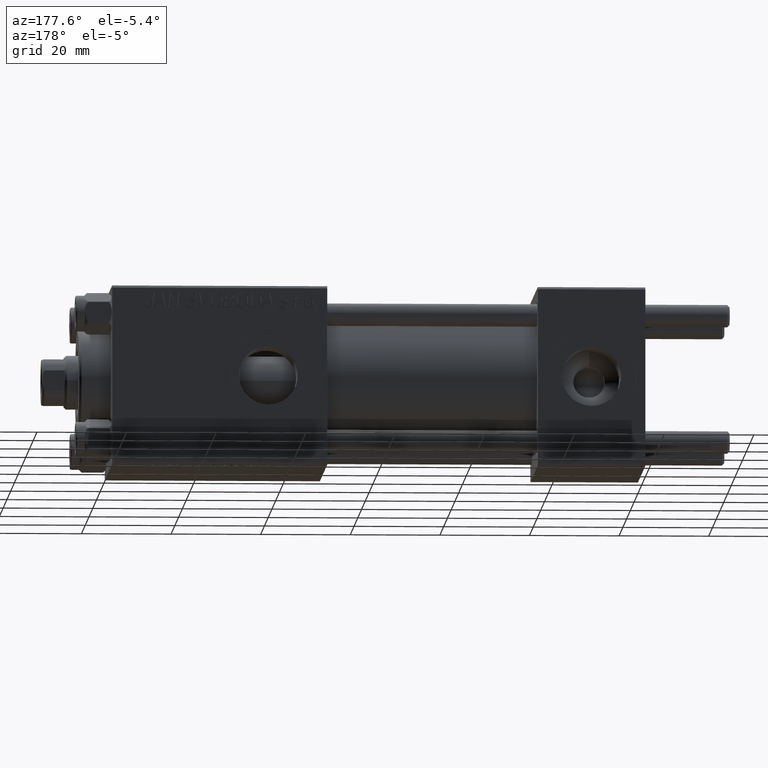
[diagram: clean part render]
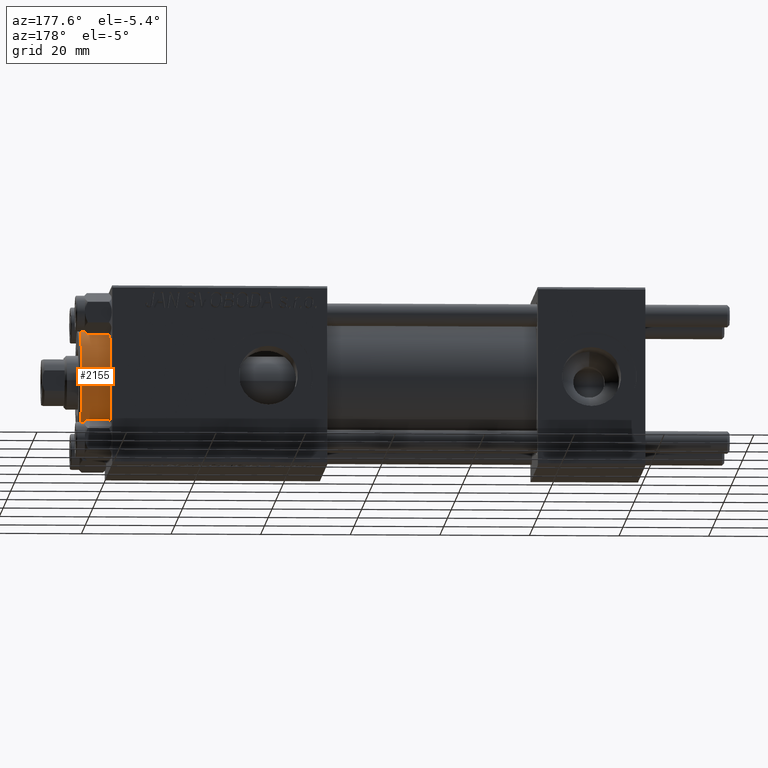
[diagram: same view with one face highlighted and labeled with its STEP entity id]
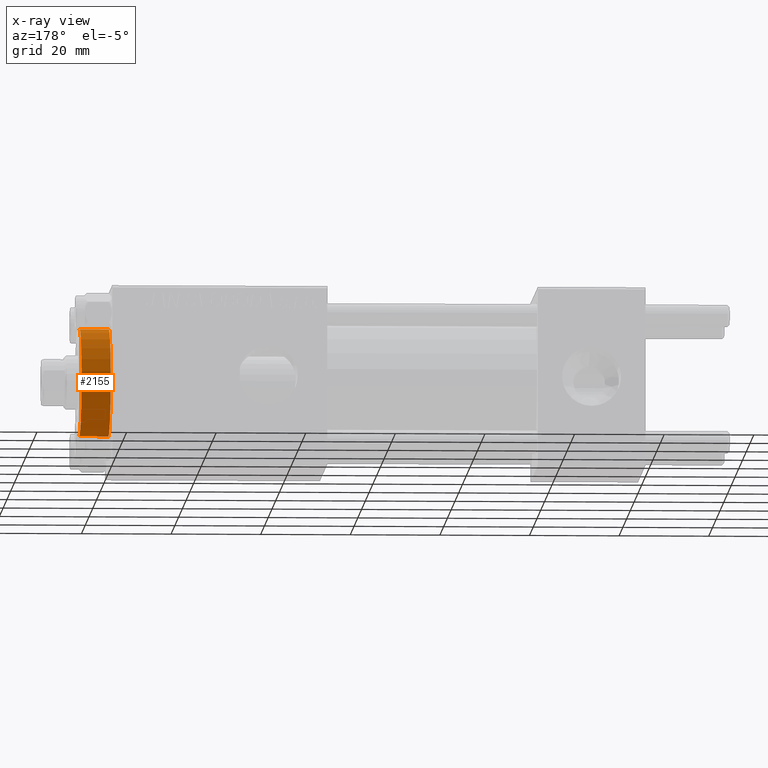
[diagram: x-ray of the same camera — body ghosted, the highlighted face saturated]
A machine part, auxiliary view. The second image highlights one B-rep face of the part: STEP entity #2155.
The next image is the same camera in x-ray: the body ghosted, the highlighted face saturated — about 0% of this face is hidden behind the body in this view.
In plain terms, the highlighted cylindrical surface (partial cylindrical patch) has radius 12 mm, axis along (-1, -0, 0).
Its self-contained STEP definition (entity closure, byte-faithful):
#279 = DIRECTION ( 'NONE',  ( 1.000000000000000000, 0.000000000000000000, 0.000000000000000000 ) ) ;
#1573 = LINE ( 'NONE', #9861, #38157 ) ;
#2108 = CARTESIAN_POINT ( 'NONE',  ( -12.00000000000000178, 0.000000000000000000, 28.69999999999999929 ) ) ;
#2155 = ADVANCED_FACE ( 'NONE', ( #31318 ), #42169, .T. ) ;
#3906 = AXIS2_PLACEMENT_3D ( 'NONE', #22513, #45702, #46703 ) ;
#4289 = DIRECTION ( 'NONE',  ( 1.000000000000000000, 0.000000000000000000, 0.000000000000000000 ) ) ;
#4768 = CARTESIAN_POINT ( 'NONE',  ( 12.00000000000000178, 1.469576158976824144E-15, 28.69999999999999929 ) ) ;
#7460 = VERTEX_POINT ( 'NONE', #4768 ) ;
#7856 = ORIENTED_EDGE ( 'NONE', *, *, #19846, .F. ) ;
#9831 = CARTESIAN_POINT ( 'NONE',  ( 12.00000000000000178, 1.469576158976824144E-15, 35.19999999999999574 ) ) ;
#9861 = CARTESIAN_POINT ( 'NONE',  ( -12.00000000000000178, 0.000000000000000000, 35.70000000000000284 ) ) ;
#10445 = CIRCLE ( 'NONE', #31362, 12.00000000000000178 ) ;
#12941 = VERTEX_POINT ( 'NONE', #2108 ) ;
#16634 = CARTESIAN_POINT ( 'NONE',  ( 12.00000000000000178, 1.469576158976824144E-15, 35.70000000000000284 ) ) ;
#18885 = DIRECTION ( 'NONE',  ( 0.000000000000000000, 0.000000000000000000, 1.000000000000000000 ) ) ;
#19846 = EDGE_CURVE ( 'NONE', #49079, #12941, #1573, .T. ) ;
#22513 = CARTESIAN_POINT ( 'NONE',  ( 0.000000000000000000, 0.000000000000000000, 35.70000000000000284 ) ) ;
#23398 = ORIENTED_EDGE ( 'NONE', *, *, #38524, .T. ) ;
#24258 = ORIENTED_EDGE ( 'NONE', *, *, #47780, .T. ) ;
#25221 = DIRECTION ( 'NONE',  ( -0.000000000000000000, -0.000000000000000000, -1.000000000000000000 ) ) ;
#26572 = EDGE_LOOP ( 'NONE', ( #44835, #23398, #24258, #7856 ) ) ;
#27886 = AXIS2_PLACEMENT_3D ( 'NONE', #46339, #45840, #4289 ) ;
#30966 = CARTESIAN_POINT ( 'NONE',  ( 0.000000000000000000, 0.000000000000000000, 28.69999999999999929 ) ) ;
#31318 = FACE_OUTER_BOUND ( 'NONE', #26572, .T. ) ;
#31362 = AXIS2_PLACEMENT_3D ( 'NONE', #30966, #18885, #279 ) ;
#31713 = CARTESIAN_POINT ( 'NONE',  ( -12.00000000000000178, 0.000000000000000000, 35.19999999999999574 ) ) ;
#32399 = VERTEX_POINT ( 'NONE', #9831 ) ;
#34166 = EDGE_CURVE ( 'NONE', #49079, #32399, #47998, .T. ) ;
#38157 = VECTOR ( 'NONE', #25221, 1000.000000000000000 ) ;
#38524 = EDGE_CURVE ( 'NONE', #32399, #7460, #43349, .T. ) ;
#39804 = DIRECTION ( 'NONE',  ( -0.000000000000000000, -0.000000000000000000, -1.000000000000000000 ) ) ;
#42169 = CYLINDRICAL_SURFACE ( 'NONE', #3906, 12.00000000000000178 ) ;
#43349 = LINE ( 'NONE', #16634, #44799 ) ;
#44799 = VECTOR ( 'NONE', #39804, 1000.000000000000000 ) ;
#44835 = ORIENTED_EDGE ( 'NONE', *, *, #34166, .T. ) ;
#45702 = DIRECTION ( 'NONE',  ( -0.000000000000000000, -0.000000000000000000, -1.000000000000000000 ) ) ;
#45840 = DIRECTION ( 'NONE',  ( 0.000000000000000000, 0.000000000000000000, -1.000000000000000000 ) ) ;
#46339 = CARTESIAN_POINT ( 'NONE',  ( 0.000000000000000000, 0.000000000000000000, 35.19999999999999574 ) ) ;
#46703 = DIRECTION ( 'NONE',  ( -1.000000000000000000, 0.000000000000000000, 0.000000000000000000 ) ) ;
#47780 = EDGE_CURVE ( 'NONE', #7460, #12941, #10445, .T. ) ;
#47998 = CIRCLE ( 'NONE', #27886, 12.00000000000000178 ) ;
#49079 = VERTEX_POINT ( 'NONE', #31713 ) ;